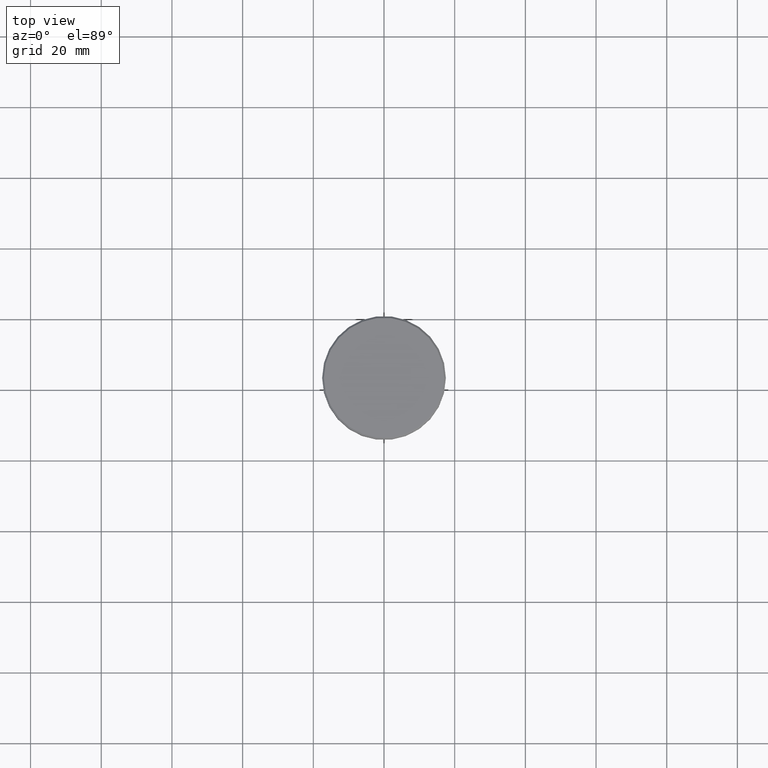
[diagram: clean part render]
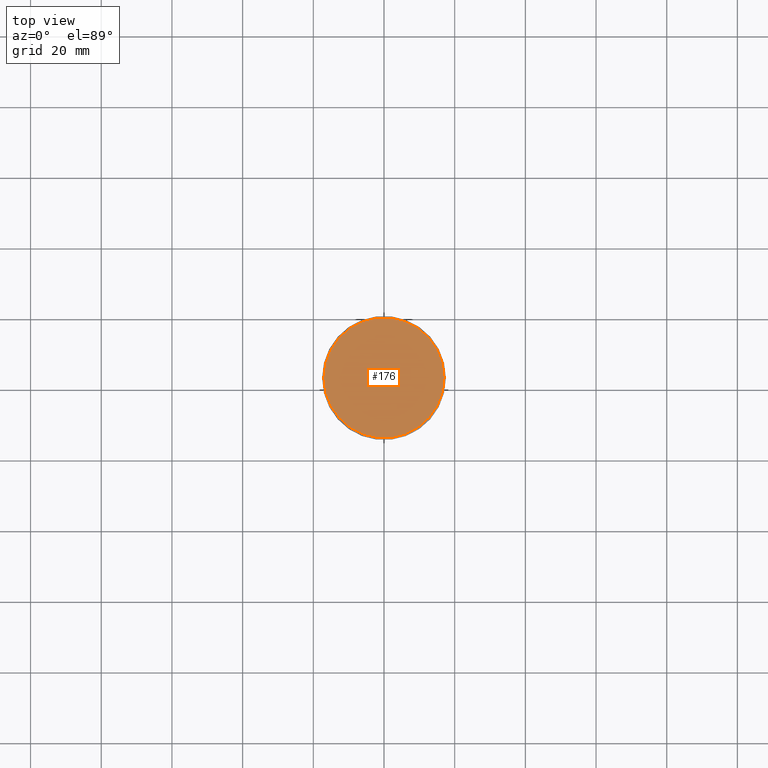
[diagram: same view with one face highlighted and labeled with its STEP entity id]
A machine part, top view. The second image highlights one B-rep face of the part: STEP entity #176.
In plain terms, the highlighted planar face has unit normal (0, -0, 1).
Its self-contained STEP definition (entity closure, byte-faithful):
#80 = DIRECTION ( 'NONE',  ( 0.000000000000000000, -0.000000000000000000, 1.000000000000000000 ) ) ;
#85 = EDGE_CURVE ( 'NONE', #1017, #724, #558, .T. ) ;
#170 = AXIS2_PLACEMENT_3D ( 'NONE', #652, #829, #751 ) ;
#173 = PLANE ( 'NONE',  #927 ) ;
#176 = ADVANCED_FACE ( 'NONE', ( #991 ), #173, .T. ) ;
#177 = CARTESIAN_POINT ( 'NONE',  ( -17.00000000000001421, 0.000000000000000000, 0.000000000000000000 ) ) ;
#242 = DIRECTION ( 'NONE',  ( -0.000000000000000000, -0.000000000000000000, 1.000000000000000000 ) ) ;
#427 = CARTESIAN_POINT ( 'NONE',  ( 17.00000000000001421, 2.112515728529185250E-15, 0.000000000000000000 ) ) ;
#433 = CARTESIAN_POINT ( 'NONE',  ( 0.000000000000000000, 0.000000000000000000, 0.000000000000000000 ) ) ;
#438 = DIRECTION ( 'NONE',  ( 1.000000000000000000, 0.000000000000000000, 0.000000000000000000 ) ) ;
#524 = CARTESIAN_POINT ( 'NONE',  ( 0.000000000000000000, 0.000000000000000000, 0.000000000000000000 ) ) ;
#558 = CIRCLE ( 'NONE', #1159, 17.00000000000001421 ) ;
#613 = DIRECTION ( 'NONE',  ( 1.000000000000000000, 0.000000000000000000, 0.000000000000000000 ) ) ;
#652 = CARTESIAN_POINT ( 'NONE',  ( 0.000000000000000000, 0.000000000000000000, 0.000000000000000000 ) ) ;
#673 = ORIENTED_EDGE ( 'NONE', *, *, #85, .T. ) ;
#724 = VERTEX_POINT ( 'NONE', #177 ) ;
#751 = DIRECTION ( 'NONE',  ( 1.000000000000000000, 0.000000000000000000, 0.000000000000000000 ) ) ;
#772 = EDGE_LOOP ( 'NONE', ( #1068, #673 ) ) ;
#829 = DIRECTION ( 'NONE',  ( -0.000000000000000000, -0.000000000000000000, 1.000000000000000000 ) ) ;
#878 = CIRCLE ( 'NONE', #170, 17.00000000000001421 ) ;
#927 = AXIS2_PLACEMENT_3D ( 'NONE', #524, #80, #438 ) ;
#991 = FACE_OUTER_BOUND ( 'NONE', #772, .T. ) ;
#1017 = VERTEX_POINT ( 'NONE', #427 ) ;
#1068 = ORIENTED_EDGE ( 'NONE', *, *, #1130, .T. ) ;
#1130 = EDGE_CURVE ( 'NONE', #724, #1017, #878, .T. ) ;
#1159 = AXIS2_PLACEMENT_3D ( 'NONE', #433, #242, #613 ) ;